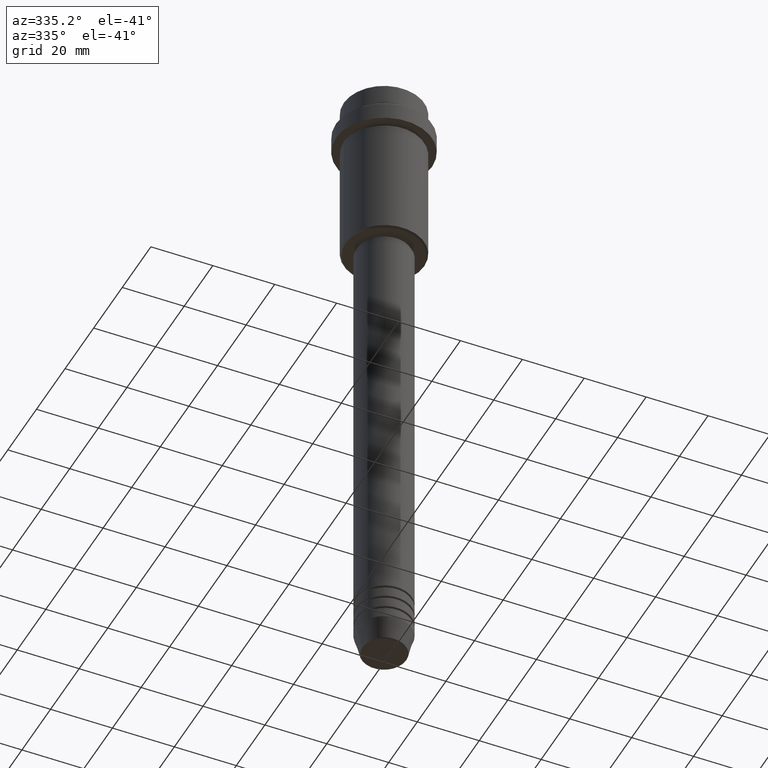
[diagram: clean part render]
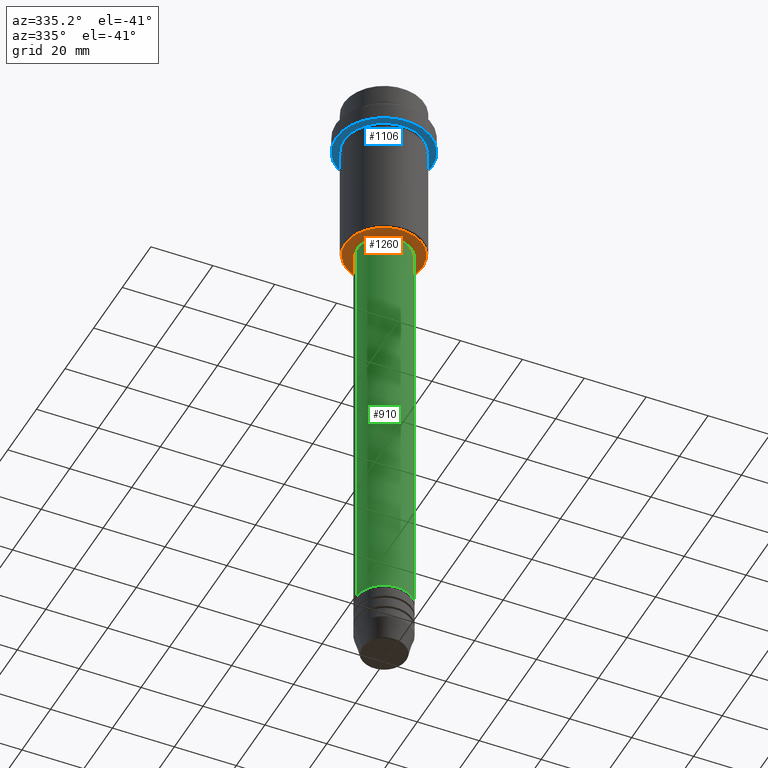
[diagram: same view with three faces highlighted in distinct colors, each labeled with its STEP entity id]
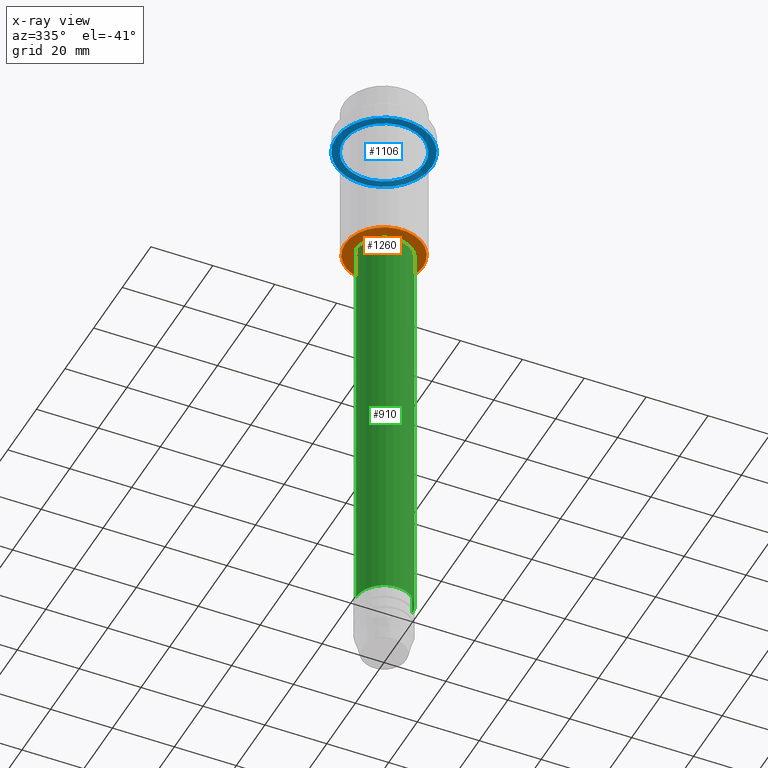
[diagram: x-ray of the same camera — body ghosted, the three highlighted faces saturated]
A machine part, auxiliary view with three faces highlighted in distinct colors.
The next image is the same camera in x-ray (body ghosted, the three faces saturated) — at least one of them is partly hidden behind the body in this view.
Their STEP definitions:

[orange] entity #1260 — the highlighted planar face has unit normal (0, 0, -1).
#32 = FACE_BOUND ( 'NONE', #1041, .T. ) ;
#38 = AXIS2_PLACEMENT_3D ( 'NONE', #764, #413, #1093 ) ;
#48 = VERTEX_POINT ( 'NONE', #720 ) ;
#86 = CIRCLE ( 'NONE', #1319, 12.49999999999998401 ) ;
#224 = CIRCLE ( 'NONE', #506, 8.499999999999994671 ) ;
#236 = PLANE ( 'NONE',  #1100 ) ;
#243 = CARTESIAN_POINT ( 'NONE',  ( -8.499999999999994671, 1.040949779275249745E-15, -55.00000000000002842 ) ) ;
#299 = VERTEX_POINT ( 'NONE', #243 ) ;
#363 = DIRECTION ( 'NONE',  ( 0.000000000000000000, 0.000000000000000000, -1.000000000000000000 ) ) ;
#413 = DIRECTION ( 'NONE',  ( -0.000000000000000000, -0.000000000000000000, 1.000000000000000000 ) ) ;
#429 = ORIENTED_EDGE ( 'NONE', *, *, #722, .T. ) ;
#431 = CARTESIAN_POINT ( 'NONE',  ( 0.000000000000000000, 0.000000000000000000, -55.00000000000002842 ) ) ;
#442 = FACE_OUTER_BOUND ( 'NONE', #1121, .T. ) ;
#506 = AXIS2_PLACEMENT_3D ( 'NONE', #1402, #770, #1189 ) ;
#540 = CARTESIAN_POINT ( 'NONE',  ( 0.000000000000000000, 0.000000000000000000, -55.00000000000002842 ) ) ;
#656 = EDGE_CURVE ( 'NONE', #48, #299, #844, .T. ) ;
#720 = CARTESIAN_POINT ( 'NONE',  ( 8.499999999999994671, 0.000000000000000000, -55.00000000000002842 ) ) ;
#722 = EDGE_CURVE ( 'NONE', #299, #48, #224, .T. ) ;
#726 = VERTEX_POINT ( 'NONE', #1089 ) ;
#764 = CARTESIAN_POINT ( 'NONE',  ( 0.000000000000000000, 0.000000000000000000, -55.00000000000002842 ) ) ;
#770 = DIRECTION ( 'NONE',  ( -0.000000000000000000, -0.000000000000000000, 1.000000000000000000 ) ) ;
#844 = CIRCLE ( 'NONE', #38, 8.499999999999994671 ) ;
#866 = CARTESIAN_POINT ( 'NONE',  ( 12.49999999999998401, 0.000000000000000000, -55.00000000000002842 ) ) ;
#874 = DIRECTION ( 'NONE',  ( -1.000000000000000000, 0.000000000000000000, 0.000000000000000000 ) ) ;
#885 = DIRECTION ( 'NONE',  ( -1.000000000000000000, 0.000000000000000000, -0.000000000000000000 ) ) ;
#893 = ORIENTED_EDGE ( 'NONE', *, *, #1097, .T. ) ;
#967 = CIRCLE ( 'NONE', #1340, 12.49999999999998401 ) ;
#976 = DIRECTION ( 'NONE',  ( 0.000000000000000000, 0.000000000000000000, -1.000000000000000000 ) ) ;
#1041 = EDGE_LOOP ( 'NONE', ( #1137, #429 ) ) ;
#1089 = CARTESIAN_POINT ( 'NONE',  ( -12.49999999999998401, 1.561424668912874125E-15, -55.00000000000002842 ) ) ;
#1093 = DIRECTION ( 'NONE',  ( 1.000000000000000000, 0.000000000000000000, 0.000000000000000000 ) ) ;
#1097 = EDGE_CURVE ( 'NONE', #726, #1184, #86, .T. ) ;
#1100 = AXIS2_PLACEMENT_3D ( 'NONE', #1347, #363, #885 ) ;
#1121 = EDGE_LOOP ( 'NONE', ( #1180, #893 ) ) ;
#1127 = EDGE_CURVE ( 'NONE', #1184, #726, #967, .T. ) ;
#1137 = ORIENTED_EDGE ( 'NONE', *, *, #656, .T. ) ;
#1180 = ORIENTED_EDGE ( 'NONE', *, *, #1127, .T. ) ;
#1184 = VERTEX_POINT ( 'NONE', #866 ) ;
#1189 = DIRECTION ( 'NONE',  ( 1.000000000000000000, 0.000000000000000000, 0.000000000000000000 ) ) ;
#1260 = ADVANCED_FACE ( 'NONE', ( #442, #32 ), #236, .T. ) ;
#1289 = DIRECTION ( 'NONE',  ( 0.000000000000000000, 0.000000000000000000, -1.000000000000000000 ) ) ;
#1308 = DIRECTION ( 'NONE',  ( -1.000000000000000000, 0.000000000000000000, 0.000000000000000000 ) ) ;
#1319 = AXIS2_PLACEMENT_3D ( 'NONE', #431, #1289, #874 ) ;
#1340 = AXIS2_PLACEMENT_3D ( 'NONE', #540, #976, #1308 ) ;
#1347 = CARTESIAN_POINT ( 'NONE',  ( 0.000000000000000000, 13.00000000000000000, -55.00000000000002842 ) ) ;
#1402 = CARTESIAN_POINT ( 'NONE',  ( 0.000000000000000000, 0.000000000000000000, -55.00000000000002842 ) ) ;

[blue] entity #1106 — the highlighted planar face has unit normal (0, 0, -1).
#81 = CIRCLE ( 'NONE', #794, 15.50000000000000000 ) ;
#92 = FACE_BOUND ( 'NONE', #950, .T. ) ;
#95 = DIRECTION ( 'NONE',  ( -1.000000000000000000, 0.000000000000000000, 0.000000000000000000 ) ) ;
#96 = EDGE_CURVE ( 'NONE', #928, #1196, #981, .T. ) ;
#119 = ORIENTED_EDGE ( 'NONE', *, *, #96, .F. ) ;
#126 = ORIENTED_EDGE ( 'NONE', *, *, #1110, .T. ) ;
#160 = EDGE_CURVE ( 'NONE', #1196, #928, #81, .T. ) ;
#200 = AXIS2_PLACEMENT_3D ( 'NONE', #1240, #698, #253 ) ;
#253 = DIRECTION ( 'NONE',  ( -1.000000000000000000, 0.000000000000000000, 0.000000000000000000 ) ) ;
#281 = ORIENTED_EDGE ( 'NONE', *, *, #160, .F. ) ;
#305 = EDGE_LOOP ( 'NONE', ( #119, #281 ) ) ;
#307 = DIRECTION ( 'NONE',  ( -0.000000000000000000, -0.000000000000000000, 1.000000000000000000 ) ) ;
#360 = AXIS2_PLACEMENT_3D ( 'NONE', #1104, #767, #991 ) ;
#403 = AXIS2_PLACEMENT_3D ( 'NONE', #538, #307, #95 ) ;
#407 = VERTEX_POINT ( 'NONE', #659 ) ;
#538 = CARTESIAN_POINT ( 'NONE',  ( 0.000000000000000000, 0.000000000000000000, -15.00000000000000000 ) ) ;
#582 = DIRECTION ( 'NONE',  ( -0.000000000000000000, -0.000000000000000000, 1.000000000000000000 ) ) ;
#655 = DIRECTION ( 'NONE',  ( 1.000000000000000000, 0.000000000000000000, 0.000000000000000000 ) ) ;
#659 = CARTESIAN_POINT ( 'NONE',  ( -12.99999999999999467, 0.000000000000000000, -15.00000000000000000 ) ) ;
#662 = CIRCLE ( 'NONE', #403, 12.99999999999999467 ) ;
#698 = DIRECTION ( 'NONE',  ( -0.000000000000000000, -0.000000000000000000, 1.000000000000000000 ) ) ;
#767 = DIRECTION ( 'NONE',  ( 0.000000000000000000, 0.000000000000000000, -1.000000000000000000 ) ) ;
#793 = CARTESIAN_POINT ( 'NONE',  ( 12.99999999999999467, 1.592040838891558504E-15, -15.00000000000000000 ) ) ;
#794 = AXIS2_PLACEMENT_3D ( 'NONE', #993, #1413, #655 ) ;
#858 = VERTEX_POINT ( 'NONE', #793 ) ;
#928 = VERTEX_POINT ( 'NONE', #1174 ) ;
#950 = EDGE_LOOP ( 'NONE', ( #1125, #126 ) ) ;
#973 = CARTESIAN_POINT ( 'NONE',  ( -15.50000000000000000, 1.898202538678397557E-15, -15.00000000000000178 ) ) ;
#981 = CIRCLE ( 'NONE', #1094, 15.50000000000000000 ) ;
#991 = DIRECTION ( 'NONE',  ( -1.000000000000000000, 0.000000000000000000, -0.000000000000000000 ) ) ;
#993 = CARTESIAN_POINT ( 'NONE',  ( 0.000000000000000000, 0.000000000000000000, -15.00000000000000178 ) ) ;
#1009 = CARTESIAN_POINT ( 'NONE',  ( 0.000000000000000000, 0.000000000000000000, -15.00000000000000178 ) ) ;
#1094 = AXIS2_PLACEMENT_3D ( 'NONE', #1009, #582, #1341 ) ;
#1104 = CARTESIAN_POINT ( 'NONE',  ( 0.000000000000000000, 15.50000000000000000, -15.00000000000000000 ) ) ;
#1106 = ADVANCED_FACE ( 'NONE', ( #92, #1201 ), #1301, .T. ) ;
#1110 = EDGE_CURVE ( 'NONE', #858, #407, #662, .T. ) ;
#1125 = ORIENTED_EDGE ( 'NONE', *, *, #1304, .T. ) ;
#1174 = CARTESIAN_POINT ( 'NONE',  ( 15.50000000000000000, 0.000000000000000000, -15.00000000000000178 ) ) ;
#1196 = VERTEX_POINT ( 'NONE', #973 ) ;
#1201 = FACE_OUTER_BOUND ( 'NONE', #305, .T. ) ;
#1240 = CARTESIAN_POINT ( 'NONE',  ( 0.000000000000000000, 0.000000000000000000, -15.00000000000000000 ) ) ;
#1301 = PLANE ( 'NONE',  #360 ) ;
#1304 = EDGE_CURVE ( 'NONE', #407, #858, #1387, .T. ) ;
#1341 = DIRECTION ( 'NONE',  ( 1.000000000000000000, 0.000000000000000000, 0.000000000000000000 ) ) ;
#1387 = CIRCLE ( 'NONE', #200, 12.99999999999999467 ) ;
#1413 = DIRECTION ( 'NONE',  ( -0.000000000000000000, -0.000000000000000000, 1.000000000000000000 ) ) ;

[green] entity #910 — the highlighted cylindrical surface (edge-blend (fillet) strip) has radius 9 mm, axis along (-0, -0, 1).
#9 = CARTESIAN_POINT ( 'NONE',  ( -9.000000000000001776, 1.102182119232617911E-15, 0.000000000000000000 ) ) ;
#12 = AXIS2_PLACEMENT_3D ( 'NONE', #799, #1343, #812 ) ;
#23 = ORIENTED_EDGE ( 'NONE', *, *, #499, .F. ) ;
#24 = VERTEX_POINT ( 'NONE', #1064 ) ;
#35 = DIRECTION ( 'NONE',  ( -0.000000000000000000, -0.000000000000000000, 1.000000000000000000 ) ) ;
#57 = ORIENTED_EDGE ( 'NONE', *, *, #608, .T. ) ;
#82 = DIRECTION ( 'NONE',  ( -0.000000000000000000, -0.000000000000000000, 1.000000000000000000 ) ) ;
#88 = DIRECTION ( 'NONE',  ( 1.000000000000000000, 0.000000000000000000, 0.000000000000000000 ) ) ;
#114 = DIRECTION ( 'NONE',  ( -0.000000000000000000, -0.000000000000000000, 1.000000000000000000 ) ) ;
#121 = EDGE_CURVE ( 'NONE', #167, #888, #670, .T. ) ;
#131 = ORIENTED_EDGE ( 'NONE', *, *, #277, .T. ) ;
#167 = VERTEX_POINT ( 'NONE', #768 ) ;
#171 = CIRCLE ( 'NONE', #354, 9.000000000000001776 ) ;
#277 = EDGE_CURVE ( 'NONE', #24, #689, #482, .T. ) ;
#354 = AXIS2_PLACEMENT_3D ( 'NONE', #1129, #35, #88 ) ;
#378 = CARTESIAN_POINT ( 'NONE',  ( 9.000000000000001776, 0.000000000000000000, 0.000000000000000000 ) ) ;
#482 = LINE ( 'NONE', #378, #1134 ) ;
#495 = VECTOR ( 'NONE', #114, 1000.000000000000000 ) ;
#499 = EDGE_CURVE ( 'NONE', #888, #689, #171, .T. ) ;
#519 = CARTESIAN_POINT ( 'NONE',  ( 0.000000000000000000, 0.000000000000000000, -190.9999999999999147 ) ) ;
#608 = EDGE_CURVE ( 'NONE', #167, #24, #1298, .T. ) ;
#670 = LINE ( 'NONE', #9, #495 ) ;
#689 = VERTEX_POINT ( 'NONE', #1194 ) ;
#768 = CARTESIAN_POINT ( 'NONE',  ( -9.000000000000000000, 1.102182119232617714E-15, -190.9999999999999147 ) ) ;
#799 = CARTESIAN_POINT ( 'NONE',  ( 0.000000000000000000, 0.000000000000000000, 0.000000000000000000 ) ) ;
#812 = DIRECTION ( 'NONE',  ( 1.000000000000000000, 0.000000000000000000, 0.000000000000000000 ) ) ;
#839 = ORIENTED_EDGE ( 'NONE', *, *, #121, .F. ) ;
#886 = AXIS2_PLACEMENT_3D ( 'NONE', #519, #82, #960 ) ;
#888 = VERTEX_POINT ( 'NONE', #1247 ) ;
#910 = ADVANCED_FACE ( 'NONE', ( #1336 ), #1036, .T. ) ;
#960 = DIRECTION ( 'NONE',  ( 1.000000000000000000, 0.000000000000000000, 0.000000000000000000 ) ) ;
#1036 = CYLINDRICAL_SURFACE ( 'NONE', #12, 9.000000000000001776 ) ;
#1064 = CARTESIAN_POINT ( 'NONE',  ( 9.000000000000000000, 0.000000000000000000, -190.9999999999999147 ) ) ;
#1129 = CARTESIAN_POINT ( 'NONE',  ( 0.000000000000000000, 0.000000000000000000, -56.00000000000002842 ) ) ;
#1134 = VECTOR ( 'NONE', #1151, 1000.000000000000000 ) ;
#1151 = DIRECTION ( 'NONE',  ( -0.000000000000000000, -0.000000000000000000, 1.000000000000000000 ) ) ;
#1178 = EDGE_LOOP ( 'NONE', ( #839, #57, #131, #23 ) ) ;
#1194 = CARTESIAN_POINT ( 'NONE',  ( 9.000000000000001776, 0.000000000000000000, -56.00000000000002842 ) ) ;
#1247 = CARTESIAN_POINT ( 'NONE',  ( -9.000000000000001776, 1.102182119232617911E-15, -56.00000000000002842 ) ) ;
#1298 = CIRCLE ( 'NONE', #886, 9.000000000000000000 ) ;
#1336 = FACE_OUTER_BOUND ( 'NONE', #1178, .T. ) ;
#1343 = DIRECTION ( 'NONE',  ( -0.000000000000000000, -0.000000000000000000, 1.000000000000000000 ) ) ;